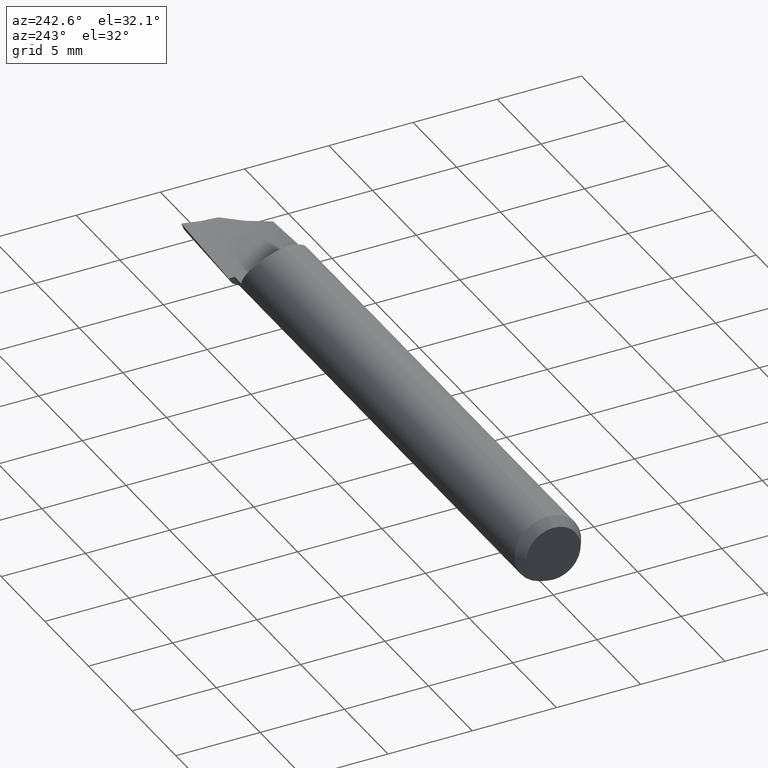
[diagram: clean part render]
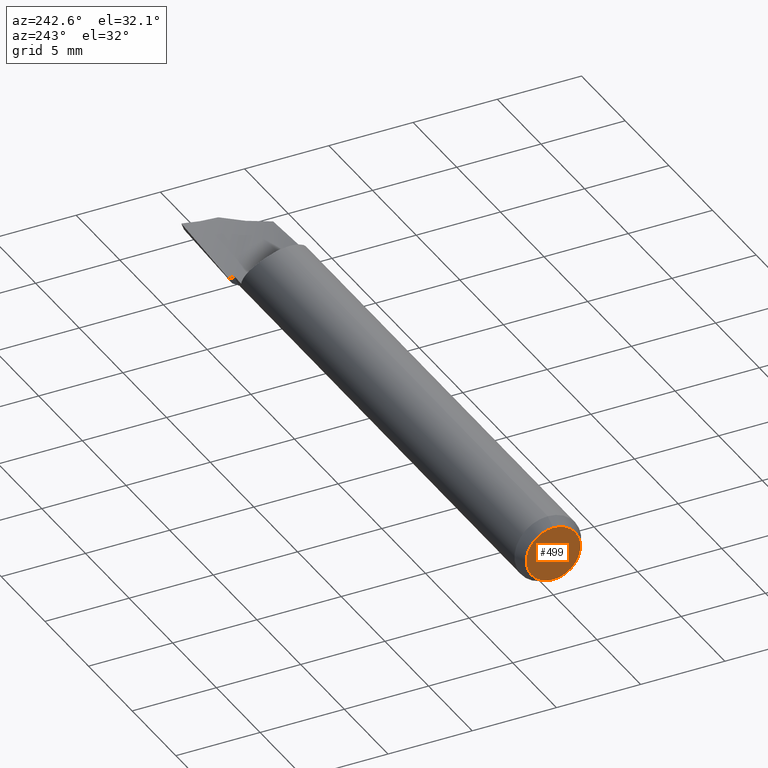
[diagram: same view with one face highlighted and labeled with its STEP entity id]
A machine part, auxiliary view. The second image highlights one B-rep face of the part: STEP entity #499.
In plain terms, the highlighted planar face has unit normal (1, 0, 0).
Its self-contained STEP definition (entity closure, byte-faithful):
#141 = DIRECTION ( 'NONE',  ( -1.000000000000000000, -0.000000000000000000, -0.000000000000000000 ) ) ;
#143 = CARTESIAN_POINT ( 'NONE',  ( 0.000000000000000000, 0.000000000000000000, 0.000000000000000000 ) ) ;
#217 = DIRECTION ( 'NONE',  ( 0.000000000000000000, 0.000000000000000000, -1.000000000000000000 ) ) ;
#237 = VERTEX_POINT ( 'NONE', #444 ) ;
#256 = ORIENTED_EDGE ( 'NONE', *, *, #522, .T. ) ;
#261 = CIRCLE ( 'NONE', #576, 0.06356624327025930943 ) ;
#287 = EDGE_CURVE ( 'NONE', #237, #609, #658, .T. ) ;
#301 = DIRECTION ( 'NONE',  ( -1.000000000000000000, -0.000000000000000000, -0.000000000000000000 ) ) ;
#373 = PLANE ( 'NONE',  #624 ) ;
#433 = DIRECTION ( 'NONE',  ( 1.000000000000000000, 0.000000000000000000, 0.000000000000000000 ) ) ;
#439 = CARTESIAN_POINT ( 'NONE',  ( 0.000000000000000000, 0.000000000000000000, 0.000000000000000000 ) ) ;
#444 = CARTESIAN_POINT ( 'NONE',  ( 0.000000000000000000, 0.000000000000000000, -0.06356624327025930943 ) ) ;
#447 = CARTESIAN_POINT ( 'NONE',  ( 0.000000000000000000, 8.668432334411929514E-18, 0.06356624327025930943 ) ) ;
#480 = FACE_OUTER_BOUND ( 'NONE', #569, .T. ) ;
#488 = CARTESIAN_POINT ( 'NONE',  ( 0.000000000000000000, 0.000000000000000000, 0.000000000000000000 ) ) ;
#499 = ADVANCED_FACE ( 'NONE', ( #480 ), #373, .F. ) ;
#512 = DIRECTION ( 'NONE',  ( 0.000000000000000000, 0.000000000000000000, 1.000000000000000000 ) ) ;
#516 = ORIENTED_EDGE ( 'NONE', *, *, #287, .T. ) ;
#522 = EDGE_CURVE ( 'NONE', #609, #237, #261, .T. ) ;
#524 = AXIS2_PLACEMENT_3D ( 'NONE', #143, #301, #512 ) ;
#569 = EDGE_LOOP ( 'NONE', ( #516, #256 ) ) ;
#576 = AXIS2_PLACEMENT_3D ( 'NONE', #488, #141, #586 ) ;
#586 = DIRECTION ( 'NONE',  ( 0.000000000000000000, 0.000000000000000000, 1.000000000000000000 ) ) ;
#609 = VERTEX_POINT ( 'NONE', #447 ) ;
#624 = AXIS2_PLACEMENT_3D ( 'NONE', #439, #433, #217 ) ;
#658 = CIRCLE ( 'NONE', #524, 0.06356624327025930943 ) ;